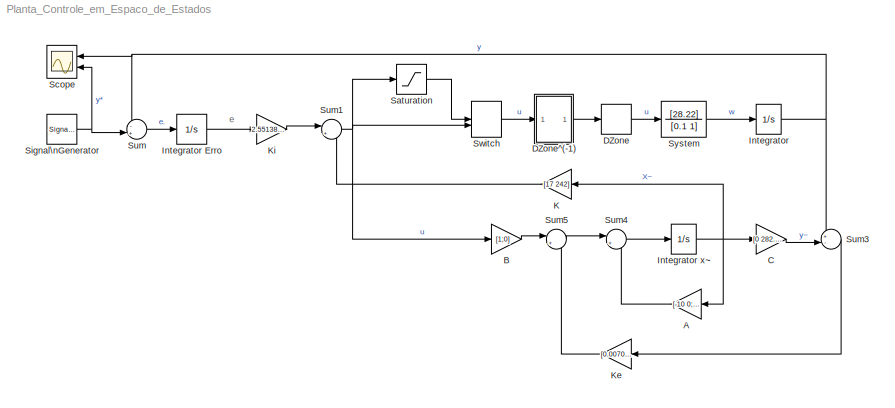
MODEL Planta_Controle_em_Espaco_de_Estados
KIND model
BLOCK [Gain] A
  Gain = [-10 0;1 0]
  Multiplication = Matrix(K*u)
  OutDataTypeStr = Inherit: Inherit via internal rule
  ParamDataTypeStr = Inherit: Inherit via internal rule
  SID = 18
  SaturateOnIntegerOverflow = off
BLOCK [Gain] B
  Gain = [1;0]
  Multiplication = Matrix(K*u)
  OutDataTypeStr = Inherit: Inherit via internal rule
  ParamDataTypeStr = Inherit: Inherit via internal rule
  SID = 19
  SaturateOnIntegerOverflow = off
BLOCK [Gain] C
  Gain = [0 282.20]
  Multiplication = Matrix(K*u)
  OutDataTypeStr = Inherit: Inherit via internal rule
  ParamDataTypeStr = Inherit: Inherit via internal rule
  SID = 15
  SaturateOnIntegerOverflow = off
BLOCK [DeadZone] DZone
  LowerValue = -0.5296
  SID = 28
  UpperValue = 0.5635
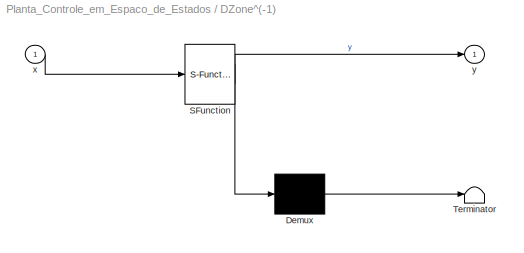
BLOCK [SubSystem] DZone^(-1)
  ErrorFcn = Stateflow.Translate.translate
  PermitHierarchicalResolution = ExplicitOnly
  Ports = [1, 1]
  RequestExecContextInheritance = off
  SFBlockType = MATLAB Function
  SID = 29
  TreatAsAtomicUnit = on
  Variant = off
BLOCK [Demux] DZone^(-1)/ Demux 
  Outputs = 1
  Ports = [1, 1]
  SID = 29::17
BLOCK [S-Function] DZone^(-1)/ SFunction 
  EnableBusSupport = on
  FunctionName = sf_sfun
  PortCounts = [1 2]
  Ports = [1, 2]
  SFunctionDeploymentMode = off
  SID = 29::16
  Tag = Stateflow S-Function Planta_Controle_em_Espaco_de_Estados 1
BLOCK [Terminator] DZone^(-1)/ Terminator 
  SID = 29::18
BLOCK [Inport] DZone^(-1)/x
  IconDisplay = Port number
  SID = 29::1
BLOCK [Outport] DZone^(-1)/y
  IconDisplay = Port number
  SID = 29::5
BLOCK [Integrator] Integrator
  Ports = [1, 1]
  SID = 24
BLOCK [Integrator] Integrator Erro
  Ports = [1, 1]
  SID = 5
BLOCK [Integrator] Integrator x~
  Ports = [1, 1]
  SID = 16
BLOCK [Gain] K
  Gain = [17 242]
  Multiplication = Matrix(K*u)
  OutDataTypeStr = Inherit: Inherit via internal rule
  ParamDataTypeStr = Inherit: Inherit via internal rule
  SID = 6
  SaturateOnIntegerOverflow = off
BLOCK [Gain] Ke
  Gain = [0.007087172218285;0.024805102763997]
  Multiplication = Matrix(K*u)
  OutDataTypeStr = Inherit: Inherit via internal rule
  ParamDataTypeStr = Inherit: Inherit via internal rule
  SID = 21
  SaturateOnIntegerOverflow = off
BLOCK [Gain] Ki
  Gain = 2.551381998582566
  OutDataTypeStr = Inherit: Inherit via internal rule
  ParamDataTypeStr = Inherit: Inherit via internal rule
  SID = 7
  SaturateOnIntegerOverflow = off
BLOCK [Saturate] Saturation
  InputPortMap = u0
  LowerLimit = -10
  Ports = [1, 1]
  SID = 25
  UpperLimit = 10
BLOCK [Scope] Scope
  NumInputPorts = 2
  Ports = [2]
  SID = 8
  ScopeSpecificationString = Simulink.scopes.TimeScopeBlockCfg('CurrentConfiguration', extmgr.ConfigurationSet(extmgr.Configuration('Core','General UI',true),extmgr.Configuration('Core','Source UI',true),extmgr.Configuration('Sources','WiredSimulink',true),extmgr.Configuration('Visuals','Time Domain',true,'SerializedDisplays',{struct('MinYLimReal','-47.9506','MaxYLimReal','-41.30908','YLabelReal','','MinYLimMag','0.00000','Ma...<+1401ch>
BLOCK [SignalGenerator] Signal\nGenerator
  Amplitude = 45
  Frequency = 0.05
  Ports = [0, 1]
  SID = 27
  WaveForm = square
BLOCK [Sum] Sum
  IconShape = round
  InputSameDT = off
  Inputs = -+|
  OutDataTypeStr = Inherit: Inherit via internal rule
  Ports = [2, 1]
  SID = 10
  SaturateOnIntegerOverflow = off
BLOCK [Sum] Sum1
  IconShape = round
  InputSameDT = off
  Inputs = |+-
  OutDataTypeStr = Inherit: Inherit via internal rule
  Ports = [2, 1]
  SID = 11
  SaturateOnIntegerOverflow = off
BLOCK [Sum] Sum3
  IconShape = round
  InputSameDT = off
  Inputs = +-|
  OutDataTypeStr = Inherit: Inherit via internal rule
  Ports = [2, 1]
  SID = 14
  SaturateOnIntegerOverflow = off
BLOCK [Sum] Sum4
  IconShape = round
  InputSameDT = off
  Inputs = |++
  OutDataTypeStr = Inherit: Inherit via internal rule
  Ports = [2, 1]
  SID = 17
  SaturateOnIntegerOverflow = off
BLOCK [Sum] Sum5
  IconShape = round
  InputSameDT = off
  Inputs = |++
  OutDataTypeStr = Inherit: Inherit via internal rule
  Ports = [2, 1]
  SID = 20
  SaturateOnIntegerOverflow = off
BLOCK [ManualSwitch] Switch
  SID = 26
BLOCK [TransferFcn] System
  Denominator = [0.1 1]
  Numerator = [28.22]
  SID = 22
ANNOTATION (root): e
LINE A:1 -> Sum4:2
LINE B:1 -> Sum5:1
LINE C:1 -> Sum3:2
LINE DZone:1 -> System:1
LINE DZone^(-1)/ Demux :1 -> DZone^(-1)/ Terminator :1
LINE DZone^(-1)/ SFunction :1 -> DZone^(-1)/ Demux :1
LINE DZone^(-1)/ SFunction :2 -> DZone^(-1)/y:1
LINE DZone^(-1)/x:1 -> DZone^(-1)/ SFunction :1
LINE DZone^(-1):1 -> DZone:1
LINE Integrator Erro:1 -> Ki:1
NET Integrator x~:1 -> A:1, C:1, K:1
NET Integrator:1 -> Scope:1, Sum3:1, Sum:1
LINE K:1 -> Sum1:2
LINE Ke:1 -> Sum5:2
LINE Ki:1 -> Sum1:1
LINE Saturation:1 -> Switch:1
NET Signal\nGenerator:1 -> Scope:2, Sum:2
NET Sum1:1 -> B:1, Saturation:1, Switch:2
LINE Sum3:1 -> Ke:1
LINE Sum4:1 -> Integrator x~:1
LINE Sum5:1 -> Sum4:1
LINE Sum:1 -> Integrator Erro:1
LINE Switch:1 -> DZone^(-1):1
LINE System:1 -> Integrator:1
note: NET lines group one-source signal fan-out (src -> all destinations, sorted); 1:1 wires keep LINE
CHART DZone^(-1) states=1 transitions=1
  STATE_LABEL 'eML_blk_kernel()'
